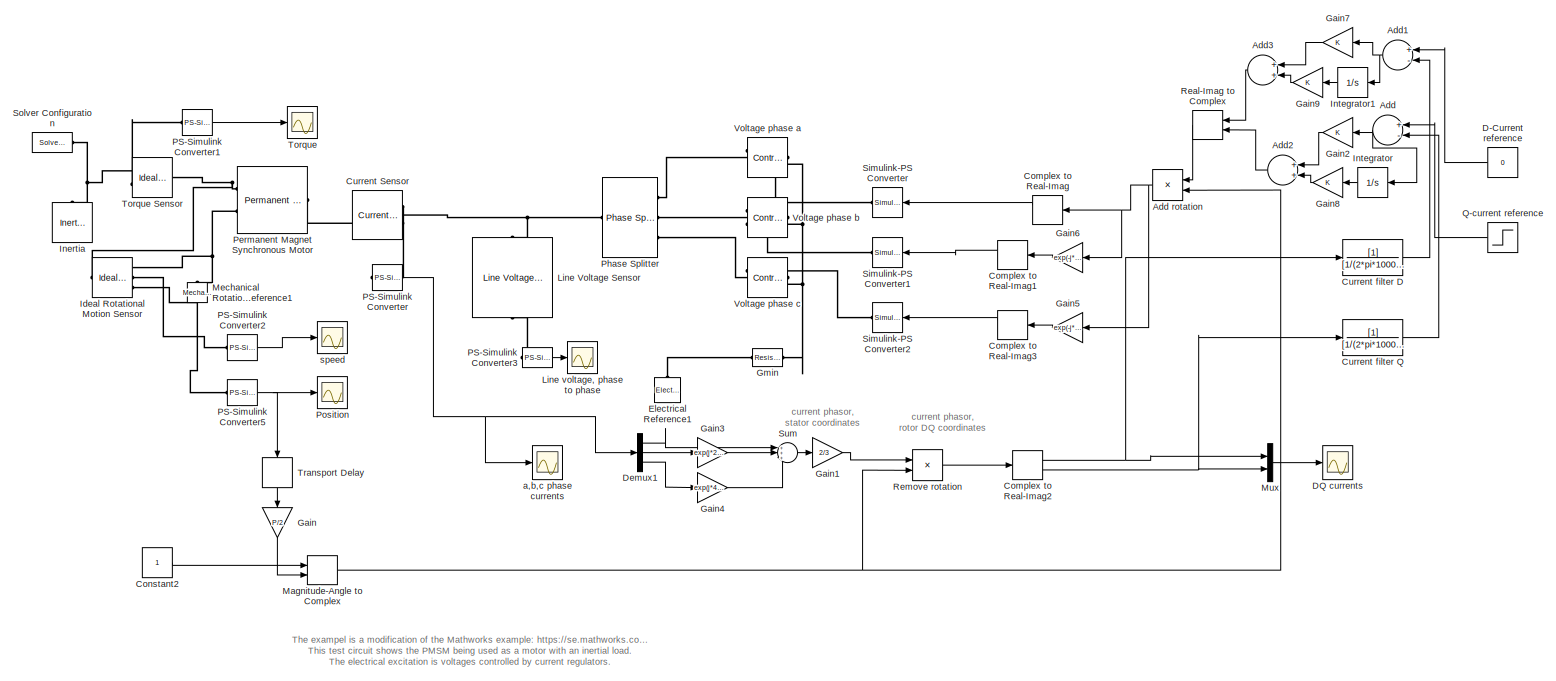
[diagram: root canvas - part 1/1, most of the canvas]
MODEL slx_8b66a1732b53
KIND model
CONFIG AbsTol = 1e-4
CONFIG FixedStep = auto
CONFIG MaxStep = 1e-4
CONFIG MinStep = auto
CONFIG RelTol = 1e-5
CONFIG SampleTimeConstraint = Unconstrained
CONFIG Solver = ode23t
CONFIG SolverMode = Auto
CONFIG SolverName = ode23t
CONFIG StartTime = 0.0
CONFIG StopTime = 1
BLOCK [Sum] Add
  InputSameDT = off
  Inputs = +-
  OutDataTypeStr = Inherit: Inherit via internal rule
  Ports = [2, 1]
  SaturateOnIntegerOverflow = off
BLOCK [Product] Add rotation
  InputSameDT = off
  OutDataTypeStr = Inherit: Inherit via internal rule
  Ports = [2, 1]
  RndMeth = Floor
  SaturateOnIntegerOverflow = off
BLOCK [Sum] Add1
  InputSameDT = off
  Inputs = +-
  OutDataTypeStr = Inherit: Inherit via internal rule
  Ports = [2, 1]
  SaturateOnIntegerOverflow = off
BLOCK [Sum] Add2
  InputSameDT = off
  OutDataTypeStr = Inherit: Inherit via internal rule
  Ports = [2, 1]
  SaturateOnIntegerOverflow = off
BLOCK [Sum] Add3
  InputSameDT = off
  OutDataTypeStr = Inherit: Inherit via internal rule
  Ports = [2, 1]
  SaturateOnIntegerOverflow = off
BLOCK [ComplexToRealImag] Complex to Real-Imag
  Ports = [1, 2]
BLOCK [ComplexToRealImag] Complex to Real-Imag1
  Ports = [1, 2]
BLOCK [ComplexToRealImag] Complex to Real-Imag2
  Ports = [1, 2]
BLOCK [ComplexToRealImag] Complex to Real-Imag3
  Ports = [1, 2]
BLOCK [Constant] Constant2
BLOCK [Reference] Current Sensor  REF=pe_lib/Sensors/Current Sensor
  ClassName = Simscape variant
  ComponentPath = pe.sensors.current.abc
  ComponentVariantNames = Composite three-phase ports, Expanded three-phase ports
  ComponentVariants = pe.sensors.current.abc, pe.sensors.current.Xabc
  LogSimulationData = off
  Ports = [0, 0, 0, 0, 0, 1, 2]
  SchemaVersion = 1
  SourceBlock = pe_lib/Sensors/Current Sensor
  SourceFile = pe.sensors.current.abc
  SourceType = Current Sensor
BLOCK [TransferFcn] Current filter D
  Denominator = [1/(2*pi*1000) 1]
BLOCK [TransferFcn] Current filter Q
  Denominator = [1/(2*pi*1000) 1]
BLOCK [Constant] D-Current reference
  Value = 0
BLOCK [Scope] DQ currents
  DataFormat = StructureWithTime
  Decimation = 10
  Grid = on
  LimitDataPoints = on
  MaxDataPoints = 50000
  Ports = [1]
  SampleInput = off
  SampleTime = -1
  SaveName = ScopeData1
  SaveToWorkspace = off
  ShowLegends = off
  TickLabels = OneTimeTick
  TimeRange = 1
  YMax = 12.49459
  YMin = -0.16198
  ZoomMode = on
BLOCK [Demux] Demux1
  DisplayOption = bar
  Outputs = 3
  Ports = [1, 3]
BLOCK [Reference] Electrical Reference1  REF=fl_lib/Electrical/Electrical Elements/Electrical Reference
  ClassName = reference
  ComponentPath = foundation.electrical.elements.reference
  ComponentVariantNames = reference
  ComponentVariants = foundation.electrical.elements.reference
  LogSimulationData = off
  Ports = [0, 0, 0, 0, 0, 1]
  SchemaVersion = 1
  SourceBlock = fl_lib/Electrical/Electrical Elements/Electrical Reference
  SourceFile = foundation.electrical.elements.reference
  SourceType = Electrical Reference
BLOCK [Gain] Gain
  Gain = P/2
  OutDataTypeStr = Inherit: Inherit via internal rule
  ParamDataTypeStr = Inherit: Inherit via internal rule
  SaturateOnIntegerOverflow = off
BLOCK [Gain] Gain1
  Gain = 2/3
  OutDataTypeStr = Inherit: Inherit via internal rule
  ParamDataTypeStr = Inherit: Inherit via internal rule
  SaturateOnIntegerOverflow = off
BLOCK [Gain] Gain2
BLOCK [Gain] Gain3
  Gain = exp(j*2*pi/3)
  OutDataTypeStr = Inherit: Inherit via internal rule
  ParamDataTypeStr = Inherit: Inherit via internal rule
  SaturateOnIntegerOverflow = off
BLOCK [Gain] Gain4
  Gain = exp(j*4*pi/3)
  OutDataTypeStr = Inherit: Inherit via internal rule
  ParamDataTypeStr = Inherit: Inherit via internal rule
  SaturateOnIntegerOverflow = off
BLOCK [Gain] Gain5
  Gain = exp(-j*4*pi/3)
  OutDataTypeStr = Inherit: Inherit via internal rule
  ParamDataTypeStr = Inherit: Inherit via internal rule
  SaturateOnIntegerOverflow = off
BLOCK [Gain] Gain6
  Gain = exp(-j*2*pi/3)
  OutDataTypeStr = Inherit: Inherit via internal rule
  ParamDataTypeStr = Inherit: Inherit via internal rule
  SaturateOnIntegerOverflow = off
BLOCK [Gain] Gain7
BLOCK [Gain] Gain8
BLOCK [Gain] Gain9
BLOCK [Reference] Gmin  REF=fl_lib/Electrical/Electrical Elements/Resistor
  ClassName = resistor
  ComponentPath = foundation.electrical.elements.resistor
  ComponentVariantNames = resistor
  ComponentVariants = foundation.electrical.elements.resistor
  LogSimulationData = off
  Ports = [0, 0, 0, 0, 0, 1, 1]
  R = 1e9
  R_conf = compiletime
  R_unit = Ohm
  SchemaVersion = 1
  SourceBlock = fl_lib/Electrical/Electrical Elements/Resistor
  SourceFile = foundation.electrical.elements.resistor
  SourceType = Resistor
  i = 0
  i_priority = High
  i_specify = off
  i_unit = A
  v = 0
  v_priority = High
  v_specify = off
  v_unit = V
BLOCK [Reference] Ideal Rotational Motion Sensor  REF=fl_lib/Mechanical/Mechanical Sensors/Ideal Rotational
Motion Sensor
  ClassName = angular_velocity
  ComponentPath = foundation.mechanical.sensors.angular_velocity
  ComponentVariantNames = angular_velocity
  ComponentVariants = foundation.mechanical.sensors.angular_velocity
  LogSimulationData = off
  Ports = [0, 0, 0, 0, 0, 1, 3]
  SchemaVersion = 1
  SourceBlock = fl_lib/Mechanical/Mechanical Sensors/Ideal Rotational\nMotion Sensor
  SourceFile = foundation.mechanical.sensors.angular_velocity
  SourceType = Ideal Rotational\nMotion Sensor
  offset = 0
  offset_conf = compiletime
  offset_unit = rad
BLOCK [Reference] Inertia  REF=fl_lib/Mechanical/Rotational Elements/Inertia
  ClassName = inertia
  ComponentPath = foundation.mechanical.rotational.inertia
  ComponentVariantNames = inertia
  ComponentVariants = foundation.mechanical.rotational.inertia
  LogSimulationData = off
  Ports = [0, 0, 0, 0, 0, 1]
  SchemaVersion = 1
  SourceBlock = fl_lib/Mechanical/Rotational Elements/Inertia
  SourceFile = foundation.mechanical.rotational.inertia
  SourceType = Inertia
  inertia = J
  inertia_conf = compiletime
  inertia_unit = kg*m^2
  t = 0
  t_priority = None
  t_specify = off
  t_unit = N*m
  w = 0
  w_priority = High
  w_specify = off
  w_unit = rad/s
BLOCK [Integrator] Integrator
  Ports = [1, 1]
BLOCK [Integrator] Integrator1
  Ports = [1, 1]
BLOCK [Reference] Line Voltage Sensor  REF=pe_lib/Sensors/Line Voltage Sensor
  ClassName = Simscape variant
  ComponentPath = pe.sensors.voltage.line.abc
  ComponentVariantNames = Composite three-phase ports, Expanded three-phase ports
  ComponentVariants = pe.sensors.voltage.line.abc, pe.sensors.voltage.line.Xabc
  LogSimulationData = off
  Ports = [0, 0, 0, 0, 0, 1, 1]
  SchemaVersion = 1
  SourceBlock = pe_lib/Sensors/Line Voltage Sensor
  SourceFile = pe.sensors.voltage.line.abc
  SourceType = Line Voltage Sensor
BLOCK [Scope] Line voltage, phase to phase
  DataFormat = StructureWithTime
  Decimation = 10
  Grid = on
  LimitDataPoints = on
  MaxDataPoints = 50000
  Ports = [1]
  SampleInput = off
  SampleTime = -1
  SaveName = ScopeData3
  SaveToWorkspace = off
  ShowLegends = off
  TickLabels = OneTimeTick
  TimeRange = auto
  YMax = 205.68103
  YMin = -119.07849
  ZoomMode = on
BLOCK [MagnitudeAngleToComplex] Magnitude-Angle to Complex
  Ports = [2, 1]
BLOCK [Reference] Mechanical Rotational Reference1  REF=fl_lib/Mechanical/Rotational Elements/Mechanical
Rotational Reference
  ClassName = reference
  ComponentPath = foundation.mechanical.rotational.reference
  ComponentVariantNames = reference
  ComponentVariants = foundation.mechanical.rotational.reference
  LogSimulationData = off
  Ports = [0, 0, 0, 0, 0, 1]
  SchemaVersion = 1
  SourceBlock = fl_lib/Mechanical/Rotational Elements/Mechanical\nRotational Reference
  SourceFile = foundation.mechanical.rotational.reference
  SourceType = Mechanical\nRotational Reference
BLOCK [Mux] Mux
  DisplayOption = bar
  Inputs = 2
  Ports = [2, 1]
BLOCK [Reference] PS-Simulink Converter  REF=nesl_utility/PS-Simulink
Converter
  AffineConversion = off
  Frequencies = []
  LeftPortType = input
  PhysicalDomain = network_engine_domain
  Ports = [0, 1, 0, 0, 0, 1]
  PseudoPeriodic = off
  RightPortType = output
  SourceBlock = nesl_utility/PS-Simulink\nConverter
  SourceType = PS-Simulink\nConverter
  SubClassName = ps_output
BLOCK [Reference] PS-Simulink Converter1  REF=nesl_utility/PS-Simulink
Converter
  AffineConversion = off
  Frequencies = []
  LeftPortType = input
  PhysicalDomain = network_engine_domain
  Ports = [0, 1, 0, 0, 0, 1]
  PseudoPeriodic = off
  RightPortType = output
  SourceBlock = nesl_utility/PS-Simulink\nConverter
  SourceType = PS-Simulink\nConverter
  SubClassName = ps_output
BLOCK [Reference] PS-Simulink Converter2  REF=nesl_utility/PS-Simulink
Converter
  AffineConversion = off
  Frequencies = []
  LeftPortType = input
  PhysicalDomain = network_engine_domain
  Ports = [0, 1, 0, 0, 0, 1]
  PseudoPeriodic = off
  RightPortType = output
  SourceBlock = nesl_utility/PS-Simulink\nConverter
  SourceType = PS-Simulink\nConverter
  SubClassName = ps_output
BLOCK [Reference] PS-Simulink Converter3  REF=nesl_utility/PS-Simulink
Converter
  AffineConversion = off
  Frequencies = []
  LeftPortType = input
  PhysicalDomain = network_engine_domain
  Ports = [0, 1, 0, 0, 0, 1]
  PseudoPeriodic = off
  RightPortType = output
  SourceBlock = nesl_utility/PS-Simulink\nConverter
  SourceType = PS-Simulink\nConverter
  SubClassName = ps_output
BLOCK [Reference] PS-Simulink Converter5  REF=nesl_utility/PS-Simulink
Converter
  AffineConversion = off
  Frequencies = []
  LeftPortType = input
  PhysicalDomain = network_engine_domain
  Ports = [0, 1, 0, 0, 0, 1]
  PseudoPeriodic = off
  RightPortType = output
  SourceBlock = nesl_utility/PS-Simulink\nConverter
  SourceType = PS-Simulink\nConverter
  SubClassName = ps_output
BLOCK [Reference] Permanent Magnet Synchronous Motor  REF=ThreePhaseExamples_lib/Permanent Magnet
Synchronous Motor
  ClassName = pmsm
  ComponentPath = ThreePhaseExamples.pmsm
  ComponentVariantNames = pmsm
  ComponentVariants = ThreePhaseExamples.pmsm
  Ld = L
  Ld_conf = compiletime
  Ld_unit = H
  LogSimulationData = off
  Lq = L
  Lq_conf = compiletime
  Lq_unit = H
  Ports = [0, 0, 0, 0, 0, 1, 2]
  Rs = R
  Rs_conf = compiletime
  Rs_unit = Ohm
  SchemaVersion = 1
  SourceBlock = ThreePhaseExamples_lib/Permanent Magnet\nSynchronous Motor
  SourceFile = ThreePhaseExamples.pmsm
  SourceType = Permanent Magnet\nSynchronous Motor
  angular_position_diff = 0
  angular_position_diff_priority = None
  angular_position_diff_specify = off
  angular_position_diff_unit = rad
  i_d = 0
  i_d_priority = High
  i_d_specify = off
  i_d_unit = A
  i_q = 0
  i_q_priority = High
  i_q_specify = off
  i_q_unit = A
  nPolePairs = P/2
  nPolePairs_conf = compiletime
  nPolePairs_unit = 1
  pm_flux_linkage = psi
  pm_flux_linkage_conf = compiletime
  pm_flux_linkage_unit = Wb
  wNominal = 0
  wNominal_conf = compiletime
  wNominal_unit = rad/s
BLOCK [Reference] Phase Splitter  REF=pe_lib/Connections/Phase Splitter
  ClassName = abc
  ComponentPath = pe.connections.phase_splitter.abc
  ComponentVariantNames = Three-phase bus connection to individual connections
  ComponentVariants = pe.connections.phase_splitter.abc
  LogSimulationData = off
  Ports = [0, 0, 0, 0, 0, 1, 3]
  SchemaVersion = 1
  SourceBlock = pe_lib/Connections/Phase Splitter
  SourceFile = pe.connections.phase_splitter.abc
  SourceType = Phase Splitter
BLOCK [Scope] Position
  DataFormat = StructureWithTime
  Decimation = 10
  Grid = on
  LimitDataPoints = on
  MaxDataPoints = 50000
  Ports = [1]
  SampleInput = off
  SampleTime = -1
  SaveName = ScopeData2
  SaveToWorkspace = off
  ShowLegends = off
  TickLabels = OneTimeTick
  TimeRange = 1
  YMax = 1374.23605
  YMin = -44.40189
  ZoomMode = on
BLOCK [Step] Q-current reference
  After = 10
  SampleTime = 0
  Time = 0.1
BLOCK [RealImagToComplex] Real-Imag to Complex
  Ports = [2, 1]
BLOCK [Product] Remove rotation
  InputSameDT = off
  Inputs = */
  OutDataTypeStr = Inherit: Inherit via internal rule
  Ports = [2, 1]
  RndMeth = Floor
  SaturateOnIntegerOverflow = off
BLOCK [Reference] Simulink-PS Converter  REF=nesl_utility/Simulink-PS
Converter
  AffineConversion = off
  Frequencies = []
  InputFilterTimeConstant = 0.001
  InputFiltering = off
  LeftPortType = input
  NoiseDistribution = none
  NoiseParameters = []
  PhysicalDomain = network_engine_domain
  Ports = [1, 0, 0, 0, 0, 0, 1]
  PseudoPeriodic = off
  RightPortType = output
  SimscapeFilterOrder = 1
  SourceBlock = nesl_utility/Simulink-PS\nConverter
  SourceType = Simulink-PS\nConverter
  SubClassName = ps_input
  UdotUserProvided = 1
BLOCK [Reference] Simulink-PS Converter1  REF=nesl_utility/Simulink-PS
Converter
  AffineConversion = off
  Frequencies = []
  InputFilterTimeConstant = 0.001
  InputFiltering = off
  LeftPortType = input
  NoiseDistribution = none
  NoiseParameters = []
  PhysicalDomain = network_engine_domain
  Ports = [1, 0, 0, 0, 0, 0, 1]
  PseudoPeriodic = off
  RightPortType = output
  SimscapeFilterOrder = 1
  SourceBlock = nesl_utility/Simulink-PS\nConverter
  SourceType = Simulink-PS\nConverter
  SubClassName = ps_input
  UdotUserProvided = 1
BLOCK [Reference] Simulink-PS Converter2  REF=nesl_utility/Simulink-PS
Converter
  AffineConversion = off
  Frequencies = []
  InputFilterTimeConstant = 0.001
  InputFiltering = off
  LeftPortType = input
  NoiseDistribution = none
  NoiseParameters = []
  PhysicalDomain = network_engine_domain
  Ports = [1, 0, 0, 0, 0, 0, 1]
  PseudoPeriodic = off
  RightPortType = output
  SimscapeFilterOrder = 1
  SourceBlock = nesl_utility/Simulink-PS\nConverter
  SourceType = Simulink-PS\nConverter
  SubClassName = ps_input
  UdotUserProvided = 1
BLOCK [Reference] Solver Configuration  REF=nesl_utility/Solver
Configuration
  AbsTol = 1e-06
  Accelerate = off
  AutomaticFiltering = on
  DelaysMemoryBudget = 1024
  DoDC = off
  DoFixedCost = on
  EnableSwitchedLinearOptims = on
  FilteringTimeConstant = 0.001
  FrequencyDomain = off
  Harmonics = []
  LeftPortType = input
  LinearAlgebra = Sparse
  LocalSolverChoice = NE_BACKWARD_EULER_ADVANCER
  LocalSolverSampleTime = 1e-5
  MaxModeIter = 2
  MaxNonlinIter = 3
  MinStep = 1e-09
  NumHomotopyIterations = 100
  OverrideAbsTol = off
  PhasorMode = off
  PhasorModeNumHarmonics = 1
  PhysicalDomain = network_engine_domain
  Ports = [0, 0, 0, 0, 0, 0, 1]
  Profile = off
  RelTol = 0.001
  ResidualTolerance = 1e-9
  RevertToSquareIcSolve = off
  RightPortType = generic
  SimulateNoise = off
  SourceBlock = nesl_utility/Solver\nConfiguration
  SourceType = Solver\nConfiguration
  SubClassName = solver
  ToWorkspace = off
  Tones = []
  UseCCode = off
  UseLocalSampling = off
  UseLocalSolver = on
BLOCK [Sum] Sum
  IconShape = round
  InputSameDT = off
  Inputs = +++
  OutDataTypeStr = Inherit: Inherit via internal rule
  Ports = [3, 1]
  SaturateOnIntegerOverflow = off
BLOCK [Scope] Torque
  DataFormat = StructureWithTime
  Decimation = 10
  Grid = on
  LimitDataPoints = on
  MaxDataPoints = 50000
  Ports = [1]
  SampleInput = off
  SampleTime = -1
  SaveName = ScopeData7
  SaveToWorkspace = off
  ShowLegends = off
  TickLabels = OneTimeTick
  TimeRange = 1
  YMax = 575.45604
  YMin = -662.90841
  ZoomMode = on
BLOCK [Reference] Torque Sensor  REF=fl_lib/Mechanical/Mechanical Sensors/Ideal Torque Sensor
  ClassName = torque
  ComponentPath = foundation.mechanical.sensors.torque
  ComponentVariantNames = torque
  ComponentVariants = foundation.mechanical.sensors.torque
  LogSimulationData = off
  Ports = [0, 0, 0, 0, 0, 1, 2]
  SchemaVersion = 1
  SourceBlock = fl_lib/Mechanical/Mechanical Sensors/Ideal Torque Sensor
  SourceFile = foundation.mechanical.sensors.torque
  SourceType = Ideal Torque Sensor
BLOCK [TransportDelay] Transport Delay
  DelayTime = 1e-5
  Ports = [1, 1]
BLOCK [Reference] Voltage phase a  REF=fl_lib/Electrical/Electrical Sources/Controlled Voltage
Source
  ClassName = controlled_voltage
  ComponentPath = foundation.electrical.sources.controlled_voltage
  ComponentVariantNames = controlled_voltage
  ComponentVariants = foundation.electrical.sources.controlled_voltage
  LogSimulationData = off
  Ports = [0, 0, 0, 0, 0, 1, 2]
  SchemaVersion = 1
  SourceBlock = fl_lib/Electrical/Electrical Sources/Controlled Voltage\nSource
  SourceFile = foundation.electrical.sources.controlled_voltage
  SourceType = Controlled Voltage\nSource
BLOCK [Reference] Voltage phase b  REF=fl_lib/Electrical/Electrical Sources/Controlled Voltage
Source
  ClassName = controlled_voltage
  ComponentPath = foundation.electrical.sources.controlled_voltage
  ComponentVariantNames = controlled_voltage
  ComponentVariants = foundation.electrical.sources.controlled_voltage
  LogSimulationData = off
  Ports = [0, 0, 0, 0, 0, 1, 2]
  SchemaVersion = 1
  SourceBlock = fl_lib/Electrical/Electrical Sources/Controlled Voltage\nSource
  SourceFile = foundation.electrical.sources.controlled_voltage
  SourceType = Controlled Voltage\nSource
BLOCK [Reference] Voltage phase c  REF=fl_lib/Electrical/Electrical Sources/Controlled Voltage
Source
  ClassName = controlled_voltage
  ComponentPath = foundation.electrical.sources.controlled_voltage
  ComponentVariantNames = controlled_voltage
  ComponentVariants = foundation.electrical.sources.controlled_voltage
  LogSimulationData = off
  Ports = [0, 0, 0, 0, 0, 1, 2]
  SchemaVersion = 1
  SourceBlock = fl_lib/Electrical/Electrical Sources/Controlled Voltage\nSource
  SourceFile = foundation.electrical.sources.controlled_voltage
  SourceType = Controlled Voltage\nSource
BLOCK [Scope] a,b,c phase currents
  DataFormat = StructureWithTime
  Decimation = 10
  Grid = on
  LimitDataPoints = on
  MaxDataPoints = 50000
  Ports = [1]
  SampleInput = off
  SampleTime = -1
  SaveName = ScopeData2
  SaveToWorkspace = off
  ShowLegends = off
  TickLabels = OneTimeTick
  TimeRange = 1
  YMax = 16.5164
  YMin = -16.94157
  ZoomMode = on
BLOCK [Scope] speed
  DataFormat = StructureWithTime
  Decimation = 10
  Grid = on
  LimitDataPoints = on
  MaxDataPoints = 50000
  Ports = [1]
  SampleInput = off
  SampleTime = -1
  SaveName = ScopeData1
  SaveToWorkspace = off
  ShowLegends = off
  TickLabels = OneTimeTick
  TimeRange = 1
  YMax = 1266.31166
  YMin = -82.37239
  ZoomMode = on
ANNOTATION (root): The exampel is a modification of the Mathworks example: https://se.mathworks.com/help/physmod/sps/examples/three-phase-custom-pmsm.html This test circuit shows the PMSM being used as a motor with an inertial load. The electrical excitation is voltages controlled by current regulators.
ANNOTATION (root): current phasor, stator coordinates
ANNOTATION (root): current phasor, rotor DQ coordinates
NET Add rotation:1 -> Complex to Real-Imag:1, Gain5:1, Gain6:1
NET Add1:1 -> Gain7:1, Integrator1:1
LINE Add2:1 -> Real-Imag to Complex:2
LINE Add3:1 -> Real-Imag to Complex:1
NET Add:1 -> Gain2:1, Integrator:1
LINE Complex to Real-Imag1:1 -> Simulink-PS Converter1:1
NET Complex to Real-Imag2:1 -> Current filter D:1, Mux:1
NET Complex to Real-Imag2:2 -> Current filter Q:1, Mux:2
LINE Complex to Real-Imag3:1 -> Simulink-PS Converter2:1
LINE Complex to Real-Imag:1 -> Simulink-PS Converter:1
LINE Constant2:1 -> Magnitude-Angle to Complex:1
LINE Current filter D:1 -> Add1:2
LINE Current filter Q:1 -> Add:2
LINE D-Current reference:1 -> Add1:1
LINE Demux1:1 -> Sum:1
LINE Demux1:2 -> Gain3:1
LINE Demux1:3 -> Gain4:1
LINE Gain1:1 -> Remove rotation:1
LINE Gain2:1 -> Add2:1
LINE Gain3:1 -> Sum:2
LINE Gain4:1 -> Sum:3
LINE Gain5:1 -> Complex to Real-Imag3:1
LINE Gain6:1 -> Complex to Real-Imag1:1
LINE Gain7:1 -> Add3:1
LINE Gain8:1 -> Add2:2
LINE Gain9:1 -> Add3:2
LINE Gain:1 -> Magnitude-Angle to Complex:2
LINE Integrator1:1 -> Gain9:1
LINE Integrator:1 -> Gain8:1
NET Magnitude-Angle to Complex:1 -> Add rotation:2, Remove rotation:2
LINE Mux:1 -> DQ currents:1
LINE PS-Simulink Converter1:1 -> Torque:1
LINE PS-Simulink Converter2:1 -> speed:1
LINE PS-Simulink Converter3:1 -> Line voltage, phase to phase:1
NET PS-Simulink Converter5:1 -> Position:1, Transport Delay:1
NET PS-Simulink Converter:1 -> Demux1:1, a,b,c phase currents:1
LINE Q-current reference:1 -> Add:1
LINE Real-Imag to Complex:1 -> Add rotation:1
LINE Remove rotation:1 -> Complex to Real-Imag2:1
LINE Sum:1 -> Gain1:1
LINE Transport Delay:1 -> Gain:1
PNET net1: Current Sensor:LConn1 -- Line Voltage Sensor:LConn1 -- Phase Splitter:LConn1
PLINE Current Sensor:RConn1 -- PS-Simulink Converter:LConn1
PLINE Current Sensor:RConn2 -- Permanent Magnet Synchronous Motor:LConn1
PLINE Electrical Reference1:LConn1 -- Gmin:LConn1
PNET net2: Gmin:RConn1 -- Voltage phase a:RConn2 -- Voltage phase b:RConn2 -- Voltage phase c:RConn2
PNET net3: Ideal Rotational Motion Sensor:LConn1 -- Permanent Magnet Synchronous Motor:RConn1 -- Torque Sensor:LConn1
PNET net4: Ideal Rotational Motion Sensor:RConn1 -- Mechanical Rotational Reference1:LConn1 -- Permanent Magnet Synchronous Motor:RConn2
PLINE Ideal Rotational Motion Sensor:RConn2 -- PS-Simulink Converter2:LConn1
PLINE Ideal Rotational Motion Sensor:RConn3 -- PS-Simulink Converter5:LConn1
PNET net5: Inertia:LConn1 -- Solver Configuration:RConn1 -- Torque Sensor:RConn1
PLINE Line Voltage Sensor:RConn1 -- PS-Simulink Converter3:LConn1
PLINE PS-Simulink Converter1:LConn1 -- Torque Sensor:RConn2
PLINE Phase Splitter:RConn1 -- Voltage phase a:LConn1
PLINE Phase Splitter:RConn2 -- Voltage phase b:LConn1
PLINE Phase Splitter:RConn3 -- Voltage phase c:LConn1
PLINE Simulink-PS Converter1:RConn1 -- Voltage phase b:RConn1
PLINE Simulink-PS Converter2:RConn1 -- Voltage phase c:RConn1
PLINE Simulink-PS Converter:RConn1 -- Voltage phase a:RConn1
note: NET lines group one-source signal fan-out (src -> all destinations, sorted); 1:1 wires keep LINE; PNET lines group multi-terminal physical nets as a canonical sorted terminal list (undirected conserving connections); 2-terminal nets keep the pairwise PLINE form
